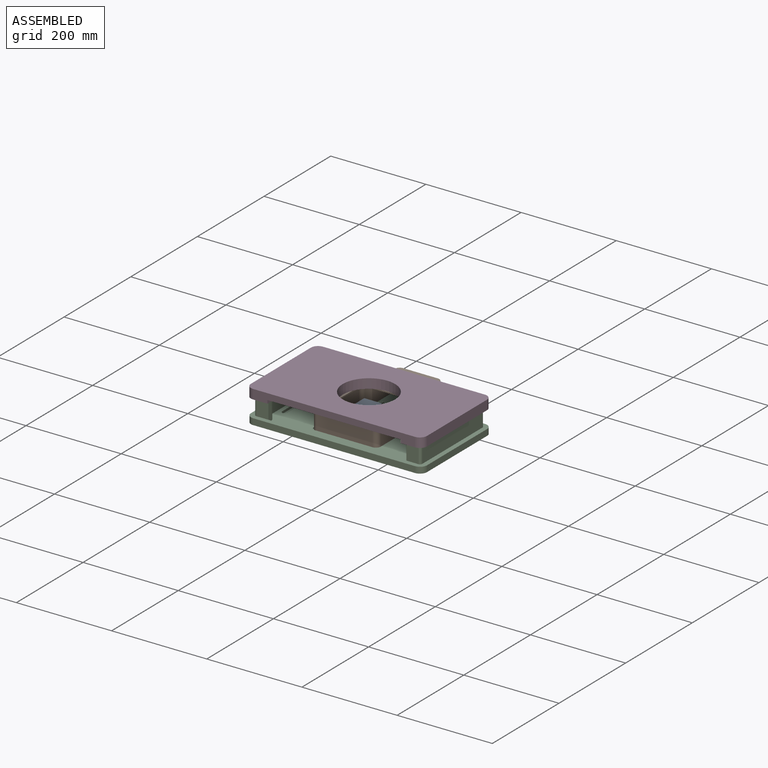
[diagram: assembled view]
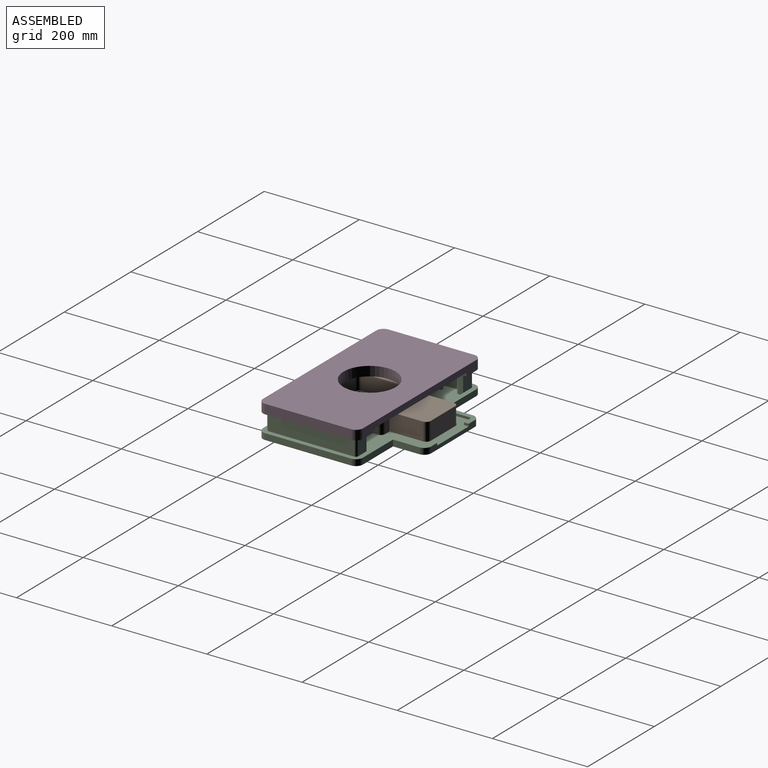
[diagram: assembled view, second angle]
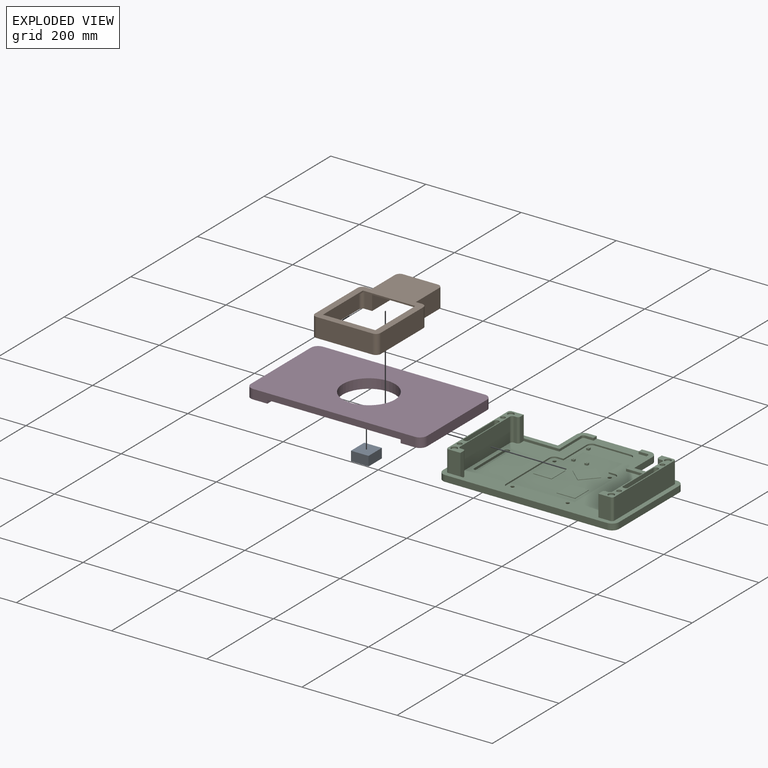
[diagram: exploded view]
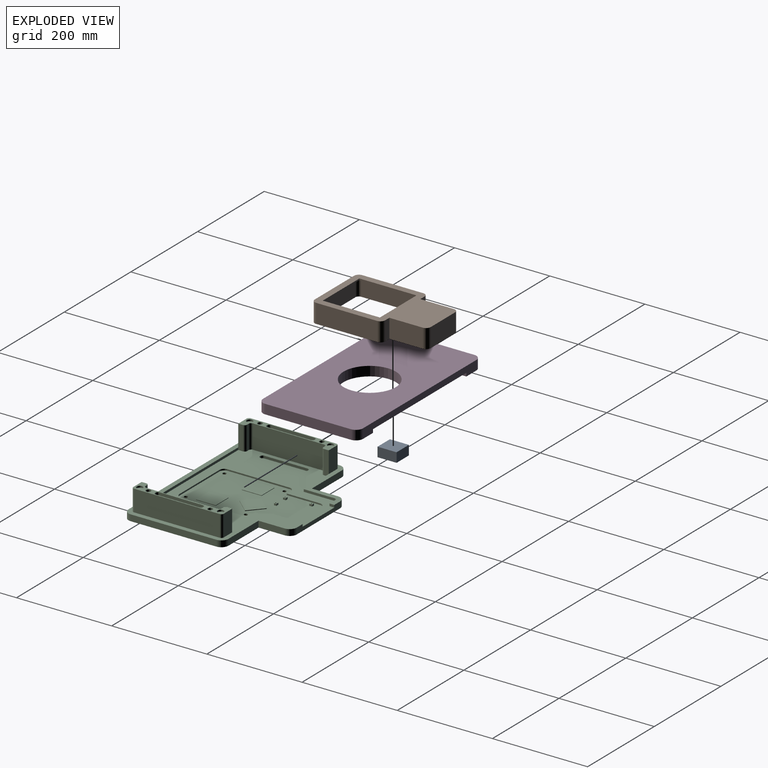
[diagram: exploded view, second angle]
ASSEMBLY  parts=3 mates=2
PART A: 6 faces, bbox 20x40x37 mm
  f0: plane 40x37mm, normal (-1,0,0), area 1480mm2, adj f1,f3,f4,f5
  f1: plane 37x20mm, normal (0,-1,0), area 740mm2, adj f0,f2,f4,f5
  f2: plane 40x37mm, normal (1,0,0), area 1480mm2, adj f1,f3,f4,f5
  f3: plane 37x20mm, normal (0,1,0), area 740mm2, adj f0,f2,f4,f5
  f4: plane 40x20mm, normal (0,0,1), area 800mm2, adj f0,f1,f2,f3
  f5: plane 40x20mm, normal (0,0,-1), area 800mm2, adj f0,f1,f2,f3
PART B: 35 faces, bbox 138x228x40 mm
  f0: plane 222x132mm, normal (0,0,-1), area 12440.9mm2, adj f17,f18,f19,f20,f21,f22,f23,f24
  f1: plane 228x138mm, normal (0,0,-1), area 2094.3mm2, adj f2,f3,f4,f5,f6,f7,f8,f9
  f2: plane 70x40mm, normal (1,0,0), area 2800mm2, adj f1,f3,f15,f16
  f3: cylinder r=10mm len=40mm, axis (0,0,-1), area 628.3mm2, adj f1,f2,f4,f16
  f4: plane 73x40mm, normal (0,1,0), area 2920mm2, adj f1,f3,f5,f16
  f5: cylinder r=10mm len=40mm, axis (0,0,-1), area 628.3mm2, adj f1,f4,f6,f16
  f6: plane 70x40mm, normal (-1,0,0), area 2800mm2, adj f1,f5,f7,f16
  f7: plane 40x12.5mm, normal (0,1,0), area 500mm2, adj f1,f6,f8,f16
  f8: cylinder r=10mm len=40mm, axis (0,0,-1), area 628.3mm2, adj f1,f7,f9,f16
  f9: plane 128x40mm, normal (-1,0,0), area 5120mm2, adj f1,f8,f10,f16
  f10: cylinder r=10mm len=40mm, axis (0,0,-1), area 628.3mm2, adj f1,f9,f11,f16
  f11: plane 118x40mm, normal (0,-1,0), area 4720mm2, adj f1,f10,f12,f16
  f12: cylinder r=10mm len=40mm, axis (0,0,-1), area 628.3mm2, adj f1,f11,f13,f16
  f13: plane 128x40mm, normal (1,0,0), area 5120mm2, adj f1,f12,f14,f16
  f14: cylinder r=10mm len=40mm, axis (0,0,-1), area 628.3mm2, adj f1,f13,f15,f16
  f15: plane 40x12.5mm, normal (0,1,0), area 500mm2, adj f1,f2,f14,f16
  f16: plane 228x138mm, normal (0,0,1), area 14535.2mm2, adj f2,f3,f4,f5,f6,f7,f8,f9
  f17: plane 73x37mm, normal (-1,0,0), area 2701mm2, adj f0,f1,f18,f30
  f18: cylinder r=7mm len=37mm, axis (0,0,-1), area 406.8mm2, adj f0,f1,f17,f19
  f19: plane 73x37mm, normal (0,-1,0), area 2701mm2, adj f0,f1,f18,f20
  f20: cylinder r=7mm len=37mm, axis (0,0,-1), area 406.8mm2, adj f0,f1,f19,f21
  f21: plane 73x37mm, normal (1,0,0), area 2701mm2, adj f0,f1,f20,f22
  f22: plane 37x15.5mm, normal (0,-1,0), area 573.5mm2, adj f0,f1,f21,f23
  f23: cylinder r=7mm len=37mm, axis (0,0,-1), area 406.8mm2, adj f0,f1,f22,f24
  f24: plane 128x37mm, normal (1,0,0), area 4736mm2, adj f0,f1,f23,f25
  f25: cylinder r=7mm len=37mm, axis (0,0,-1), area 406.8mm2, adj f0,f1,f24,f26
  f26: plane 118x37mm, normal (0,1,0), area 4366mm2, adj f0,f1,f25,f27
  f27: cylinder r=7mm len=37mm, axis (0,0,-1), area 406.8mm2, adj f0,f1,f26,f28
  f28: plane 128x37mm, normal (-1,0,0), area 4736mm2, adj f0,f1,f27,f29
  f29: cylinder r=7mm len=37mm, axis (0,0,-1), area 406.8mm2, adj f0,f1,f28,f30
  f30: plane 37x15.5mm, normal (0,-1,0), area 573.5mm2, adj f0,f1,f17,f29
  f31: plane 120x3mm, normal (1,0,0), area 360mm2, adj f0,f16,f32,f34
  f32: plane 110x3mm, normal (0,-1,0), area 330mm2, adj f0,f16,f31,f33
  f33: plane 120x3mm, normal (-1,0,0), area 360mm2, adj f0,f16,f32,f34
  f34: plane 110x3mm, normal (0,1,0), area 330mm2, adj f0,f16,f31,f33
PART C: 197 faces, bbox 370x280x58 mm
  f0: plane 190x30mm, normal (0,0,1), area 1777.2mm2, adj f59,f60,f61,f62,f63,f64,f65,f66
  f1: plane 320x270mm, normal (0,0,1), area 39989mm2, adj f5,f6,f9,f21,f22,f23,f24,f25
  f2: plane 230x140mm, normal (0,0,1), area 23401.9mm2, adj f31,f32,f33,f34,f35,f36,f37,f38
  f3: plane 370x280mm, normal (0,0,-1), area 88037.7mm2, adj f7,f8,f9,f10,f11,f12,f13,f14
  f4: plane 190x30mm, normal (0,0,1), area 1777.2mm2, adj f45,f46,f47,f48,f49,f50,f51,f52
  f5: plane 75x5mm, normal (0,-1,0), area 375mm2, adj f1,f24,f30,f64
  f6: plane 290x5mm, normal (0,1,0), area 1450mm2, adj f1,f30,f50,f72
  f7: plane 55x13mm, normal (1,0,0), area 715mm2, adj f3,f8,f20,f30
  f8: cylinder r=15mm len=15mm, axis (0,0,-1), area 306.3mm2, adj f3,f7,f9,f30
  f9: plane 130x13mm, normal (0,1,0), area 1215mm2, adj f1,f3,f8,f10,f21,f29,f30
  f10: cylinder r=15mm len=15mm, axis (0,0,-1), area 306.3mm2, adj f3,f9,f11,f30
  f11: plane 55x13mm, normal (-1,0,0), area 715mm2, adj f3,f10,f12,f30
  f12: plane 90x13mm, normal (0,1,0), area 1170mm2, adj f3,f11,f13,f30
  f13: cylinder r=15mm len=15mm, axis (0,0,-1), area 306.3mm2, adj f3,f12,f14,f30
  f14: plane 180x13mm, normal (-1,0,0), area 2340mm2, adj f3,f13,f15,f30
  f15: cylinder r=15mm len=15mm, axis (0,0,-1), area 306.3mm2, adj f3,f14,f16,f30
  f16: plane 340x13mm, normal (0,-1,0), area 4420mm2, adj f3,f15,f17,f30
  f17: cylinder r=15mm len=15mm, axis (0,0,-1), area 306.3mm2, adj f3,f16,f18,f30
  f18: plane 180x13mm, normal (1,0,0), area 2340mm2, adj f3,f17,f19,f30
  f19: cylinder r=15mm len=15mm, axis (0,0,-1), area 306.3mm2, adj f3,f18,f20,f30
  f20: plane 90x13mm, normal (0,1,0), area 1170mm2, adj f3,f7,f19,f30
  f21: plane 10x5mm, normal (-1,0,0), area 50mm2, adj f1,f9,f22,f30
  f22: plane 17.5x5mm, normal (0,-1,0), area 87.5mm2, adj f1,f21,f23,f30
  f23: cylinder r=5mm len=5mm, axis (0,0,-1), area 39.3mm2, adj f1,f22,f24,f30
  f24: plane 65x5mm, normal (-1,0,0), area 325mm2, adj f1,f5,f23,f30
  f25: plane 75x5mm, normal (0,-1,0), area 375mm2, adj f1,f26,f30,f58
  f26: plane 65x5mm, normal (1,0,0), area 325mm2, adj f1,f25,f27,f30
  f27: cylinder r=5mm len=5mm, axis (0,0,-1), area 39.3mm2, adj f1,f26,f28,f30
  f28: plane 17.5x5mm, normal (0,-1,0), area 87.5mm2, adj f1,f27,f29,f30
  f29: plane 10x5mm, normal (1,0,0), area 50mm2, adj f1,f9,f28,f30
  f30: plane 370x280mm, normal (0,0,1), area 11392.5mm2, adj f5,f6,f7,f8,f9,f10,f11,f12
  f31: plane 70x3mm, normal (-1,0,0), area 210mm2, adj f1,f2,f32,f44
  f32: cylinder r=10mm len=10mm, axis (0,0,1), area 47.1mm2, adj f1,f2,f31,f33
  f33: plane 75x3mm, normal (0,-1,0), area 225mm2, adj f1,f2,f32,f34
  f34: cylinder r=10mm len=10mm, axis (0,0,1), area 47.1mm2, adj f1,f2,f33,f35
  f35: plane 70x3mm, normal (1,0,0), area 210mm2, adj f1,f2,f34,f36
  f36: plane 12.5x3mm, normal (0,-1,0), area 37.5mm2, adj f1,f2,f35,f37
  f37: cylinder r=10mm len=10mm, axis (0,0,1), area 47.1mm2, adj f1,f2,f36,f38
  f38: plane 130x3mm, normal (1,0,0), area 390mm2, adj f1,f2,f37,f39
  f39: cylinder r=10mm len=10mm, axis (0,0,1), area 47.1mm2, adj f1,f2,f38,f40
  f40: plane 120x3mm, normal (0,1,0), area 360mm2, adj f1,f2,f39,f41
  f41: cylinder r=10mm len=10mm, axis (0,0,1), area 47.1mm2, adj f1,f2,f40,f42
  f42: plane 130x3mm, normal (-1,0,0), area 390mm2, adj f1,f2,f41,f43
  f43: cylinder r=10mm len=10mm, axis (0,0,1), area 47.1mm2, adj f1,f2,f42,f44
  f44: plane 12.5x3mm, normal (0,-1,0), area 37.5mm2, adj f1,f2,f31,f43
  f45: plane 45x25mm, normal (0,-1,0), area 1125mm2, adj f4,f30,f49,f50
  f46: plane 180x45mm, normal (-1,0,0), area 8100mm2, adj f4,f30,f48,f49
  f47: plane 45x25mm, normal (0,1,0), area 1125mm2, adj f4,f30,f48,f58
  f48: cylinder r=5mm len=45mm, axis (0,0,-1), area 353.4mm2, adj f4,f30,f46,f47
  f49: cylinder r=5mm len=45mm, axis (0,0,-1), area 353.4mm2, adj f4,f30,f45,f46
  f50: plane 50x10mm, normal (1,0,0), area 500mm2, adj f1,f4,f6,f45,f51
  f51: cylinder r=5mm len=50mm, axis (0,0,-1), area 392.7mm2, adj f1,f4,f50,f52
  f52: plane 50x5mm, normal (0,1,0), area 250mm2, adj f1,f4,f51,f53
  f53: cylinder r=5mm len=50mm, axis (0,0,-1), area 392.7mm2, adj f1,f4,f52,f54
  f54: plane 150x50mm, normal (1,0,0), area 7500mm2, adj f1,f4,f53,f55
  f55: cylinder r=5mm len=50mm, axis (0,0,-1), area 392.7mm2, adj f1,f4,f54,f56
  f56: plane 50x5mm, normal (0,-1,0), area 250mm2, adj f1,f4,f55,f57
  f57: cylinder r=5mm len=50mm, axis (0,0,-1), area 392.7mm2, adj f1,f4,f56,f58
  f58: plane 50x10mm, normal (1,0,0), area 500mm2, adj f1,f4,f25,f47,f57
  f59: plane 45x25mm, normal (0,1,0), area 1125mm2, adj f0,f30,f63,f64
  f60: plane 180x45mm, normal (1,0,0), area 8100mm2, adj f0,f30,f62,f63
  f61: plane 45x25mm, normal (0,-1,0), area 1125mm2, adj f0,f30,f62,f72
  f62: cylinder r=5mm len=45mm, axis (0,0,-1), area 353.4mm2, adj f0,f30,f60,f61
  f63: cylinder r=5mm len=45mm, axis (0,0,-1), area 353.4mm2, adj f0,f30,f59,f60
  f64: plane 50x10mm, normal (-1,0,0), area 500mm2, adj f0,f1,f5,f59,f65
  f65: cylinder r=5mm len=50mm, axis (0,0,-1), area 392.7mm2, adj f0,f1,f64,f66
  f66: plane 50x5mm, normal (0,-1,0), area 250mm2, adj f0,f1,f65,f67
  f67: cylinder r=5mm len=50mm, axis (0,0,-1), area 392.7mm2, adj f0,f1,f66,f68
  f68: plane 150x50mm, normal (-1,0,0), area 7500mm2, adj f0,f1,f67,f69
  f69: cylinder r=5mm len=50mm, axis (0,0,-1), area 392.7mm2, adj f0,f1,f68,f70
  f70: plane 50x5mm, normal (0,1,0), area 250mm2, adj f0,f1,f69,f71
  f71: cylinder r=5mm len=50mm, axis (0,0,-1), area 392.7mm2, adj f0,f1,f70,f72
  f72: plane 50x10mm, normal (-1,0,0), area 500mm2, adj f0,f1,f6,f61,f71
  f73: cylinder r=6.5mm len=13mm, axis (0,0,1), area 142.9mm2, adj f0,f74
  f74: plane 13x13mm, normal (0,0,1), area 132.7mm2, adj f73
  f75: cylinder r=6.5mm len=13mm, axis (0,0,1), area 142.9mm2, adj f0,f76
  f76: plane 13x13mm, normal (0,0,1), area 132.7mm2, adj f75
  f77: cylinder r=6.5mm len=13mm, axis (0,0,1), area 142.9mm2, adj f4,f78
  f78: plane 13x13mm, normal (0,0,1), area 132.7mm2, adj f77
  f79: cylinder r=6.5mm len=13mm, axis (0,0,1), area 142.9mm2, adj f4,f80
  f80: plane 13x13mm, normal (0,0,1), area 132.7mm2, adj f79
  f81: cylinder r=5mm len=10mm, axis (0,0,1), area 157.1mm2, adj f0,f82
  f82: plane 10x10mm, normal (0,0,1), area 78.5mm2, adj f81
  f83: cylinder r=5mm len=10mm, axis (0,0,1), area 157.1mm2, adj f0,f84
  f84: plane 10x10mm, normal (0,0,1), area 78.5mm2, adj f83
  f85: cylinder r=5mm len=10mm, axis (0,0,1), area 157.1mm2, adj f4,f86
  f86: plane 10x10mm, normal (0,0,1), area 78.5mm2, adj f85
  f87: cylinder r=5mm len=10mm, axis (0,0,1), area 157.1mm2, adj f4,f88
  f88: plane 10x10mm, normal (0,0,1), area 78.5mm2, adj f87
  f89: cylinder r=3.75mm len=7.5mm, axis (0,0,1), area 47.1mm2, adj f2,f94
  f90: cylinder r=3.75mm len=7.5mm, axis (0,0,1), area 47.1mm2, adj f2,f93
  f91: cylinder r=3.75mm len=7.5mm, axis (0,0,1), area 47.1mm2, adj f2,f95
  f92: cylinder r=3.75mm len=7.5mm, axis (0,0,1), area 47.1mm2, adj f2,f96
  f93: cone r=6.75mm half-angle=45deg, axis (0,0,-1), area 140mm2, adj f3,f90
  f94: cone r=3.75mm half-angle=45deg, axis (0,0,-1), area 140mm2, adj f3,f89
  f95: cone r=3.75mm half-angle=45deg, axis (0,0,-1), area 140mm2, adj f3,f91
  f96: cone r=6.75mm half-angle=45deg, axis (0,0,-1), area 140mm2, adj f3,f92
  f97: cylinder r=5mm len=30mm, axis (0,0,1), area 235.6mm2, adj f4,f98,f104,f105
  f98: plane 91x30mm, normal (1,0,0), area 2730mm2, adj f4,f97,f99,f105
  f99: cylinder r=5mm len=30mm, axis (0,0,1), area 235.6mm2, adj f4,f98,f100,f105
  f100: plane 30x1mm, normal (0,1,0), area 30mm2, adj f4,f99,f101,f105
  f101: cylinder r=5mm len=30mm, axis (0,0,1), area 235.6mm2, adj f4,f100,f102,f105
  f102: plane 91x30mm, normal (-1,0,0), area 2730mm2, adj f4,f101,f103,f105
  f103: cylinder r=5mm len=30mm, axis (0,0,1), area 235.6mm2, adj f4,f102,f104,f105
  f104: plane 30x1mm, normal (0,-1,0), area 30mm2, adj f4,f97,f103,f105
  f105: plane 101x11mm, normal (0,0,1), area 274mm2, adj f97,f98,f99,f100,f101,f102,f103,f104
  f106: plane 6.85x6.85mm, normal (0,0,1), area 36.9mm2, adj f107
  f107: cylinder r=3.43mm len=6.85mm, axis (0,0,1), area 75.3mm2, adj f106,f108
  f108: plane 91x9mm, normal (0,0,1), area 741.9mm2, adj f107,f109,f110,f111,f112,f113,f114,f115
  f109: plane 87x15mm, normal (-1,0,0), area 1305mm2, adj f105,f108,f110,f114
  f110: cylinder r=2mm len=15mm, axis (0,0,1), area 47.1mm2, adj f105,f108,f109,f111
  f111: plane 15x5mm, normal (0,1,0), area 75mm2, adj f105,f108,f110,f112
  f112: cylinder r=2mm len=15mm, axis (0,0,1), area 47.1mm2, adj f105,f108,f111,f113
  f113: plane 87x15mm, normal (1,0,0), area 1305mm2, adj f105,f108,f112,f116
  f114: cylinder r=2mm len=15mm, axis (0,0,1), area 47.1mm2, adj f105,f108,f109,f115
  f115: plane 15x5mm, normal (0,-1,0), area 75mm2, adj f105,f108,f114,f116
  f116: cylinder r=2mm len=15mm, axis (0,0,1), area 47.1mm2, adj f105,f108,f113,f115
  f117: plane 6.85x6.85mm, normal (0,0,1), area 36.9mm2, adj f118
  f118: cylinder r=3.43mm len=6.85mm, axis (0,0,1), area 75.3mm2, adj f108,f117
  f119: plane 5.54x4mm, normal (1,0,0), area 22.2mm2, adj f2,f120,f123,f124
  f120: plane 6x4mm, normal (0,1,0), area 24mm2, adj f2,f119,f121,f124
  f121: plane 5.08x4mm, normal (-1,0,0), area 20.3mm2, adj f2,f120,f122,f124
  f122: plane 4x0.46mm, normal (-0.71,-0.71,0), area 2.6mm2, adj f2,f121,f123,f124
  f123: plane 5.54x4mm, normal (0,-1,0), area 22.2mm2, adj f2,f119,f122,f124
  f124: plane 6x5.54mm, normal (0,0,1), area 30mm2, adj f119,f120,f121,f122,f123,f195
  f125: plane 4.83x4mm, normal (1,0,0), area 19.3mm2, adj f2,f126,f129,f130
  f126: plane 6x4mm, normal (0,1,0), area 24mm2, adj f2,f125,f127,f130
  f127: plane 5.54x4mm, normal (-1,0,0), area 22.2mm2, adj f2,f126,f128,f130
  f128: plane 5.29x4mm, normal (0,-1,0), area 21.1mm2, adj f2,f127,f129,f130
  f129: plane 4x0.71mm, normal (0.71,-0.71,0), area 4mm2, adj f2,f125,f128,f130
  f130: plane 6x5.54mm, normal (0,0,1), area 29.8mm2, adj f125,f126,f127,f128,f129,f193
  f131: plane 6x4mm, normal (1,0,0), area 24mm2, adj f2,f132,f134,f135
  f132: plane 5.54x4mm, normal (0,1,0), area 22.2mm2, adj f2,f131,f133,f135
  f133: plane 6x4mm, normal (-1,0,0), area 24mm2, adj f2,f132,f134,f135
  f134: plane 5.54x4mm, normal (0,-1,0), area 22.2mm2, adj f2,f131,f133,f135
  f135: plane 6x5.54mm, normal (0,0,1), area 30.1mm2, adj f131,f132,f133,f134,f191
  f136: plane 38.5x1mm, normal (0,1,0), area 38.5mm2, adj f2,f137,f139,f140
  f137: plane 41.5x1mm, normal (-1,0,0), area 41.5mm2, adj f2,f136,f138,f140
  f138: plane 38.5x1mm, normal (0,-1,0), area 38.5mm2, adj f2,f137,f139,f140
  f139: plane 41.5x1mm, normal (1,0,0), area 41.5mm2, adj f2,f136,f138,f140
  f140: plane 41.5x38.5mm, normal (0,0,1), area 1597.8mm2, adj f136,f137,f138,f139
  f141: plane 38.5x1mm, normal (0,-1,0), area 38.5mm2, adj f2,f142,f144,f145
  f142: plane 41.5x1mm, normal (1,0,0), area 41.5mm2, adj f2,f141,f143,f145
  f143: plane 38.5x1mm, normal (0,1,0), area 38.5mm2, adj f2,f142,f144,f145
  f144: plane 41.5x1mm, normal (-1,0,0), area 41.5mm2, adj f2,f141,f143,f145
  f145: plane 41.5x38.5mm, normal (0,0,1), area 1597.8mm2, adj f141,f142,f143,f144
  f146: plane 30.93x27.67mm, normal (-0.75,0.67,0), area 41.5mm2, adj f2,f147,f149,f150
  f147: plane 28.7x25.67mm, normal (-0.67,-0.75,0), area 38.5mm2, adj f2,f146,f148,f150
  f148: plane 30.93x27.67mm, normal (0.75,-0.67,0), area 41.5mm2, adj f2,f147,f149,f150
  f149: plane 28.7x25.67mm, normal (0.67,0.75,0), area 38.5mm2, adj f2,f146,f148,f150
  f150: plane 56.6x56.36mm, normal (0,0,1), area 1597.7mm2, adj f146,f147,f148,f149
  f151: plane 5x1mm, normal (0,-1,0), area 5mm2, adj f1,f152,f158,f159
  f152: cylinder r=5mm len=5mm, axis (0,0,1), area 39.3mm2, adj f1,f151,f153,f159
  f153: plane 91x5mm, normal (1,0,0), area 455mm2, adj f1,f152,f154,f159
  f154: cylinder r=5mm len=5mm, axis (0,0,1), area 39.3mm2, adj f1,f153,f155,f159
  f155: plane 5x1mm, normal (0,1,0), area 5mm2, adj f1,f154,f156,f159
  f156: cylinder r=5mm len=5mm, axis (0,0,1), area 39.3mm2, adj f1,f155,f157,f159
  f157: plane 91x5mm, normal (-1,0,0), area 455mm2, adj f1,f156,f158,f159
  f158: cylinder r=5mm len=5mm, axis (0,0,1), area 39.3mm2, adj f1,f151,f157,f159
  f159: plane 101x11mm, normal (0,0,1), area 1089.5mm2, adj f151,f152,f153,f154,f155,f156,f157,f158
  f160: plane 5x1mm, normal (0,-1,0), area 5mm2, adj f1,f161,f167,f168
  f161: cylinder r=5mm len=5mm, axis (0,0,1), area 39.3mm2, adj f1,f160,f162,f168
  f162: plane 91x5mm, normal (1,0,0), area 455mm2, adj f1,f161,f163,f168
  f163: cylinder r=5mm len=5mm, axis (0,0,1), area 39.3mm2, adj f1,f162,f164,f168
  f164: plane 5x1mm, normal (0,1,0), area 5mm2, adj f1,f163,f165,f168
  f165: cylinder r=5mm len=5mm, axis (0,0,1), area 39.3mm2, adj f1,f164,f166,f168
  f166: plane 91x5mm, normal (-1,0,0), area 455mm2, adj f1,f165,f167,f168
  f167: cylinder r=5mm len=5mm, axis (0,0,1), area 39.3mm2, adj f1,f160,f166,f168
  f168: plane 101x11mm, normal (0,0,1), area 1089.5mm2, adj f160,f161,f162,f163,f164,f165,f166,f167
  f169: cylinder r=5mm len=30mm, axis (0,0,1), area 235.6mm2, adj f0,f170,f176,f177
  f170: plane 30x1mm, normal (0,-1,0), area 30mm2, adj f0,f169,f171,f177
  f171: cylinder r=5mm len=30mm, axis (0,0,1), area 235.6mm2, adj f0,f170,f172,f177
  f172: plane 91x30mm, normal (1,0,0), area 2730mm2, adj f0,f171,f173,f177
  f173: cylinder r=5mm len=30mm, axis (0,0,1), area 235.6mm2, adj f0,f172,f174,f177
  f174: plane 30x1mm, normal (0,1,0), area 30mm2, adj f0,f173,f175,f177
  f175: cylinder r=5mm len=30mm, axis (0,0,1), area 235.6mm2, adj f0,f174,f176,f177
  f176: plane 91x30mm, normal (-1,0,0), area 2730mm2, adj f0,f169,f175,f177
  f177: plane 101x11mm, normal (0,0,1), area 274mm2, adj f169,f170,f171,f172,f173,f174,f175,f176
  f178: plane 87x15mm, normal (-1,0,0), area 1305mm2, adj f177,f179,f183,f188
  f179: cylinder r=2mm len=15mm, axis (0,0,1), area 47.1mm2, adj f177,f178,f180,f183
  f180: plane 15x5mm, normal (0,-1,0), area 75mm2, adj f177,f179,f181,f183
  f181: cylinder r=2mm len=15mm, axis (0,0,1), area 47.1mm2, adj f177,f180,f182,f183
  f182: plane 87x15mm, normal (1,0,0), area 1305mm2, adj f177,f181,f183,f186
  f183: plane 91x9mm, normal (0,0,1), area 741.9mm2, adj f178,f179,f180,f181,f182,f185,f186,f187
  f184: plane 6.85x6.85mm, normal (0,0,1), area 36.9mm2, adj f185
  f185: cylinder r=3.43mm len=6.85mm, axis (0,0,1), area 75.3mm2, adj f183,f184
  f186: cylinder r=2mm len=15mm, axis (0,0,1), area 47.1mm2, adj f177,f182,f183,f187
  f187: plane 15x5mm, normal (0,1,0), area 75mm2, adj f177,f183,f186,f188
  f188: cylinder r=2mm len=15mm, axis (0,0,1), area 47.1mm2, adj f177,f178,f183,f187
  f189: plane 6.85x6.85mm, normal (0,0,1), area 36.9mm2, adj f190
  f190: cylinder r=3.43mm len=6.85mm, axis (0,0,1), area 75.3mm2, adj f183,f189
  f191: cylinder r=1mm len=5mm, axis (0,0,1), area 31.4mm2, adj f135,f192
  f192: plane 2x2mm, normal (0,0,1), area 3.1mm2, adj f191
  f193: cylinder r=1mm len=5mm, axis (0,0,1), area 31.4mm2, adj f130,f194
  f194: plane 2x2mm, normal (0,0,1), area 3.1mm2, adj f193
  f195: cylinder r=1mm len=5mm, axis (0,0,1), area 31.4mm2, adj f124,f196
  f196: plane 2x2mm, normal (0,0,1), area 3.1mm2, adj f195
PLACE A rot(axis=(0,-1,0),90deg) t=(-12.86,8.14,37.46)mm
PLACE B t=(-4.21,-21.01,19.95)mm
PLACE C t=(-4.36,-21.1,14.95)mm
MATE planar B.f1 <-> C.f2  axis (0,0,-1) through (-4.21,13.48,19.95)mm
MATE planar A.f0 <-> C.f2  axis (0,0,-1) through (-31.36,9.55,19.95)mm
